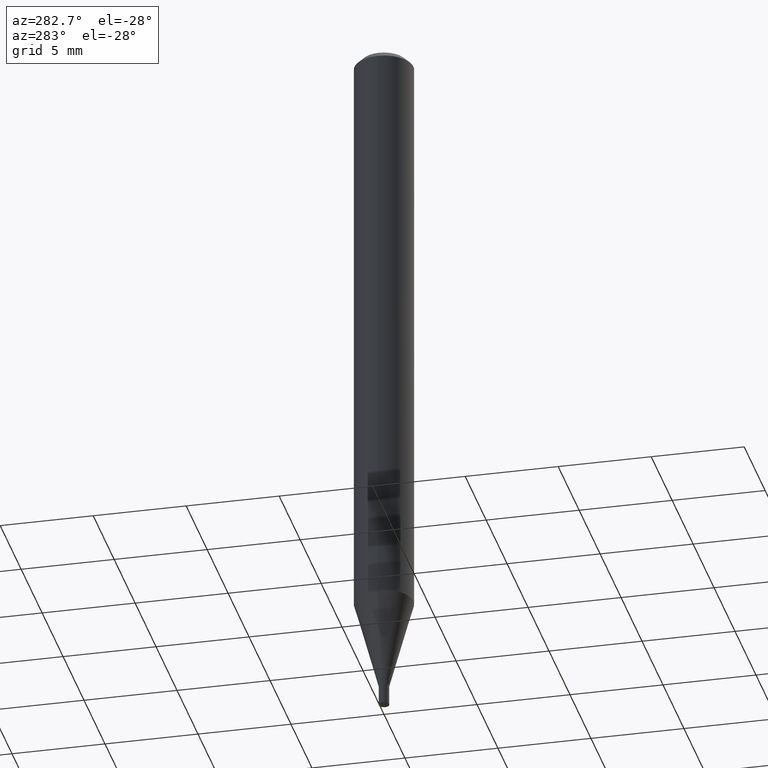
[diagram: clean part render]
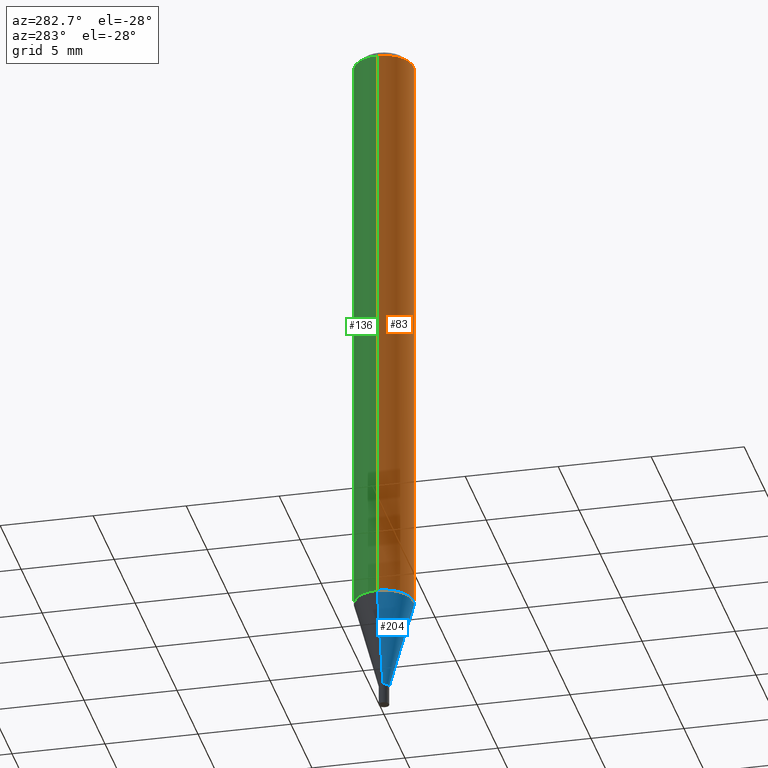
[diagram: same view with three faces highlighted in distinct colors, each labeled with its STEP entity id]
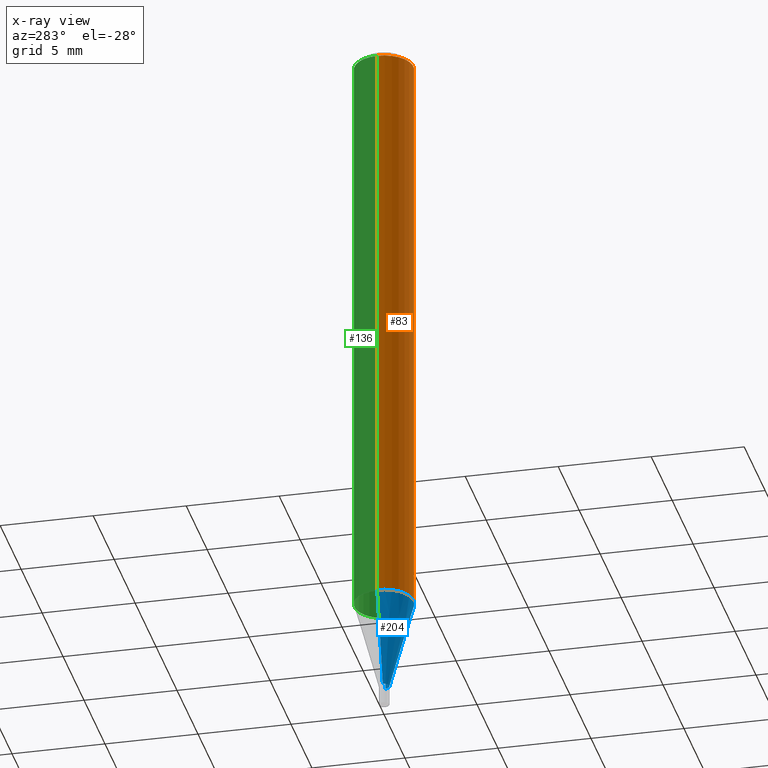
[diagram: x-ray of the same camera — body ghosted, the three highlighted faces saturated]
A machine part, auxiliary view with three faces highlighted in distinct colors.
The next image is the same camera in x-ray (body ghosted, the three faces saturated) — at least one of them is partly hidden behind the body in this view.
Their STEP definitions:

[orange] entity #83 — the highlighted cylindrical surface (edge-blend (fillet) strip) has radius 1.5875 mm, axis along (-0, 0, 1).
#18 = DIRECTION ( 'NONE',  ( -2.445468806185136597E-29, 3.491481338843145583E-15, 1.000000000000000000 ) ) ;
#19 = ORIENTED_EDGE ( 'NONE', *, *, #143, .T. ) ;
#23 = ORIENTED_EDGE ( 'NONE', *, *, #165, .F. ) ;
#25 = AXIS2_PLACEMENT_3D ( 'NONE', #343, #18, #410 ) ;
#45 = CIRCLE ( 'NONE', #25, 0.06250000000000000000 ) ;
#49 = DIRECTION ( 'NONE',  ( -2.445468806185136877E-29, 3.491481338843145188E-15, 1.000000000000000000 ) ) ;
#59 = VERTEX_POINT ( 'NONE', #147 ) ;
#67 = CYLINDRICAL_SURFACE ( 'NONE', #99, 0.06250000000000000000 ) ;
#72 = VERTEX_POINT ( 'NONE', #189 ) ;
#83 = ADVANCED_FACE ( 'NONE', ( #431 ), #67, .T. ) ;
#84 = DIRECTION ( 'NONE',  ( 1.000000000000000000, -6.982962677686266711E-15, 4.876176775795935793E-29 ) ) ;
#91 = DIRECTION ( 'NONE',  ( -2.445468806185136597E-29, 3.491481338843145583E-15, 1.000000000000000000 ) ) ;
#99 = AXIS2_PLACEMENT_3D ( 'NONE', #299, #91, #84 ) ;
#107 = EDGE_LOOP ( 'NONE', ( #23, #19, #240, #380 ) ) ;
#126 = CARTESIAN_POINT ( 'NONE',  ( -0.06250000000000000000, 4.440892098500626162E-16, -3.074334431409316114E-30 ) ) ;
#143 = EDGE_CURVE ( 'NONE', #155, #59, #266, .T. ) ;
#147 = CARTESIAN_POINT ( 'NONE',  ( 0.06250000000000000000, -4.852458611912431766E-15, -1.264799383410203149 ) ) ;
#155 = VERTEX_POINT ( 'NONE', #442 ) ;
#163 = DIRECTION ( 'NONE',  ( -2.445468806185136597E-29, 3.491481338843145583E-15, 1.000000000000000000 ) ) ;
#165 = EDGE_CURVE ( 'NONE', #155, #389, #441, .T. ) ;
#189 = CARTESIAN_POINT ( 'NONE',  ( 0.06250000000000000000, -4.888073874380388472E-16, -0.01499999999999999944 ) ) ;
#194 = CARTESIAN_POINT ( 'NONE',  ( 3.093027438211846075E-29, -4.416023444557040885E-15, -1.264799383410203149 ) ) ;
#221 = LINE ( 'NONE', #433, #345 ) ;
#240 = ORIENTED_EDGE ( 'NONE', *, *, #465, .T. ) ;
#266 = CIRCLE ( 'NONE', #324, 0.06250000000000000000 ) ;
#270 = EDGE_CURVE ( 'NONE', #389, #72, #45, .T. ) ;
#299 = CARTESIAN_POINT ( 'NONE',  ( 0.000000000000000000, 0.000000000000000000, 0.000000000000000000 ) ) ;
#324 = AXIS2_PLACEMENT_3D ( 'NONE', #194, #163, #371 ) ;
#343 = CARTESIAN_POINT ( 'NONE',  ( 3.668203209277705088E-31, -5.237222008264718399E-17, -0.01499999999999999944 ) ) ;
#345 = VECTOR ( 'NONE', #354, 39.37007874015748143 ) ;
#354 = DIRECTION ( 'NONE',  ( -2.445468806185136877E-29, 3.491481338843145188E-15, 1.000000000000000000 ) ) ;
#371 = DIRECTION ( 'NONE',  ( 1.000000000000000000, -6.982962677686262766E-15, 0.000000000000000000 ) ) ;
#380 = ORIENTED_EDGE ( 'NONE', *, *, #270, .F. ) ;
#389 = VERTEX_POINT ( 'NONE', #390 ) ;
#390 = CARTESIAN_POINT ( 'NONE',  ( -0.06250000000000000000, -1.790108622469781169E-15, -0.01499999999999999944 ) ) ;
#393 = VECTOR ( 'NONE', #49, 39.37007874015748143 ) ;
#410 = DIRECTION ( 'NONE',  ( 1.000000000000000000, -6.982962677686266711E-15, 0.000000000000000000 ) ) ;
#431 = FACE_OUTER_BOUND ( 'NONE', #107, .T. ) ;
#433 = CARTESIAN_POINT ( 'NONE',  ( 0.06250000000000000000, -4.364351673553916694E-16, 3.047610484872459871E-30 ) ) ;
#441 = LINE ( 'NONE', #126, #393 ) ;
#442 = CARTESIAN_POINT ( 'NONE',  ( -0.06250000000000000000, -3.971934234706977480E-15, -1.264799383410203149 ) ) ;
#465 = EDGE_CURVE ( 'NONE', #59, #72, #221, .T. ) ;

[blue] entity #204 — the highlighted conical surface has half-angle 15 deg.
#59 = VERTEX_POINT ( 'NONE', #147 ) ;
#61 = EDGE_LOOP ( 'NONE', ( #271, #459, #314, #381 ) ) ;
#90 = EDGE_CURVE ( 'NONE', #273, #59, #341, .T. ) ;
#92 = CONICAL_SURFACE ( 'NONE', #182, 0.01099999999999992130, 0.2617993877991500740 ) ;
#98 = VERTEX_POINT ( 'NONE', #440 ) ;
#143 = EDGE_CURVE ( 'NONE', #155, #59, #266, .T. ) ;
#147 = CARTESIAN_POINT ( 'NONE',  ( 0.06250000000000000000, -4.852458611912431766E-15, -1.264799383410203149 ) ) ;
#155 = VERTEX_POINT ( 'NONE', #442 ) ;
#163 = DIRECTION ( 'NONE',  ( -2.445468806185136597E-29, 3.491481338843145583E-15, 1.000000000000000000 ) ) ;
#182 = AXIS2_PLACEMENT_3D ( 'NONE', #224, #337, #263 ) ;
#194 = CARTESIAN_POINT ( 'NONE',  ( 3.093027438211846075E-29, -4.416023444557040885E-15, -1.264799383410203149 ) ) ;
#204 = ADVANCED_FACE ( 'NONE', ( #227 ), #92, .T. ) ;
#218 = CARTESIAN_POINT ( 'NONE',  ( -0.01099999999999992130, -5.008928609760852258E-15, -1.457000000000000073 ) ) ;
#223 = DIRECTION ( 'NONE',  ( -0.2588190451025213501, 5.211531920934551042E-15, 0.9659258262890682012 ) ) ;
#224 = CARTESIAN_POINT ( 'NONE',  ( 3.563048050611744147E-29, -5.087088310694462559E-15, -1.457000000000000073 ) ) ;
#227 = FACE_OUTER_BOUND ( 'NONE', #61, .T. ) ;
#230 = AXIS2_PLACEMENT_3D ( 'NONE', #269, #375, #309 ) ;
#263 = DIRECTION ( 'NONE',  ( 1.000000000000000000, -6.982962677686295110E-15, 0.000000000000000000 ) ) ;
#264 = EDGE_CURVE ( 'NONE', #98, #273, #315, .T. ) ;
#266 = CIRCLE ( 'NONE', #324, 0.06250000000000000000 ) ;
#269 = CARTESIAN_POINT ( 'NONE',  ( 3.563048050611744147E-29, -5.087088310694462559E-15, -1.457000000000000073 ) ) ;
#271 = ORIENTED_EDGE ( 'NONE', *, *, #301, .F. ) ;
#273 = VERTEX_POINT ( 'NONE', #388 ) ;
#301 = EDGE_CURVE ( 'NONE', #98, #155, #435, .T. ) ;
#303 = CARTESIAN_POINT ( 'NONE',  ( 0.01099999999999992130, -5.163900900149011871E-15, -1.457000000000000073 ) ) ;
#309 = DIRECTION ( 'NONE',  ( 1.000000000000000000, -6.982962677686295110E-15, 0.000000000000000000 ) ) ;
#314 = ORIENTED_EDGE ( 'NONE', *, *, #90, .T. ) ;
#315 = CIRCLE ( 'NONE', #230, 0.01099999999999992130 ) ;
#324 = AXIS2_PLACEMENT_3D ( 'NONE', #194, #163, #371 ) ;
#337 = DIRECTION ( 'NONE',  ( -2.445468806185136597E-29, 3.491481338843145583E-15, 1.000000000000000000 ) ) ;
#341 = LINE ( 'NONE', #303, #462 ) ;
#371 = DIRECTION ( 'NONE',  ( 1.000000000000000000, -6.982962677686262766E-15, 0.000000000000000000 ) ) ;
#375 = DIRECTION ( 'NONE',  ( -2.445468806185136597E-29, 3.491481338843145583E-15, 1.000000000000000000 ) ) ;
#381 = ORIENTED_EDGE ( 'NONE', *, *, #143, .F. ) ;
#388 = CARTESIAN_POINT ( 'NONE',  ( 0.01099999999999992130, -5.163900900149011871E-15, -1.457000000000000073 ) ) ;
#406 = VECTOR ( 'NONE', #223, 39.37007874015747433 ) ;
#435 = LINE ( 'NONE', #218, #406 ) ;
#440 = CARTESIAN_POINT ( 'NONE',  ( -0.01099999999999992130, -4.490431422233914869E-15, -1.457000000000000073 ) ) ;
#442 = CARTESIAN_POINT ( 'NONE',  ( -0.06250000000000000000, -3.971934234706977480E-15, -1.264799383410203149 ) ) ;
#445 = DIRECTION ( 'NONE',  ( 0.2588190451025213501, 1.565188264969621968E-15, 0.9659258262890682012 ) ) ;
#459 = ORIENTED_EDGE ( 'NONE', *, *, #264, .T. ) ;
#462 = VECTOR ( 'NONE', #445, 39.37007874015747433 ) ;

[green] entity #136 — the highlighted cylindrical surface (edge-blend (fillet) strip) has radius 1.5875 mm, axis along (-0, 0, 1).
#8 = EDGE_CURVE ( 'NONE', #72, #389, #338, .T. ) ;
#31 = DIRECTION ( 'NONE',  ( -2.445468806185136597E-29, 3.491481338843145583E-15, 1.000000000000000000 ) ) ;
#49 = DIRECTION ( 'NONE',  ( -2.445468806185136877E-29, 3.491481338843145188E-15, 1.000000000000000000 ) ) ;
#51 = FACE_OUTER_BOUND ( 'NONE', #255, .T. ) ;
#59 = VERTEX_POINT ( 'NONE', #147 ) ;
#69 = CARTESIAN_POINT ( 'NONE',  ( 3.668203209277705088E-31, -5.237222008264718399E-17, -0.01499999999999999944 ) ) ;
#72 = VERTEX_POINT ( 'NONE', #189 ) ;
#126 = CARTESIAN_POINT ( 'NONE',  ( -0.06250000000000000000, 4.440892098500626162E-16, -3.074334431409316114E-30 ) ) ;
#127 = AXIS2_PLACEMENT_3D ( 'NONE', #302, #157, #193 ) ;
#135 = AXIS2_PLACEMENT_3D ( 'NONE', #69, #31, #362 ) ;
#136 = ADVANCED_FACE ( 'NONE', ( #51 ), #197, .T. ) ;
#147 = CARTESIAN_POINT ( 'NONE',  ( 0.06250000000000000000, -4.852458611912431766E-15, -1.264799383410203149 ) ) ;
#155 = VERTEX_POINT ( 'NONE', #442 ) ;
#157 = DIRECTION ( 'NONE',  ( -2.445468806185136597E-29, 3.491481338843145583E-15, 1.000000000000000000 ) ) ;
#158 = EDGE_CURVE ( 'NONE', #59, #155, #166, .T. ) ;
#159 = CARTESIAN_POINT ( 'NONE',  ( 0.000000000000000000, 0.000000000000000000, 0.000000000000000000 ) ) ;
#165 = EDGE_CURVE ( 'NONE', #155, #389, #441, .T. ) ;
#166 = CIRCLE ( 'NONE', #127, 0.06250000000000000000 ) ;
#189 = CARTESIAN_POINT ( 'NONE',  ( 0.06250000000000000000, -4.888073874380388472E-16, -0.01499999999999999944 ) ) ;
#193 = DIRECTION ( 'NONE',  ( 1.000000000000000000, -6.982962677686262766E-15, 0.000000000000000000 ) ) ;
#197 = CYLINDRICAL_SURFACE ( 'NONE', #300, 0.06250000000000000000 ) ;
#201 = ORIENTED_EDGE ( 'NONE', *, *, #465, .F. ) ;
#214 = ORIENTED_EDGE ( 'NONE', *, *, #165, .T. ) ;
#221 = LINE ( 'NONE', #433, #345 ) ;
#255 = EDGE_LOOP ( 'NONE', ( #333, #214, #386, #201 ) ) ;
#265 = DIRECTION ( 'NONE',  ( 1.000000000000000000, -6.982962677686266711E-15, 4.876176775795935793E-29 ) ) ;
#300 = AXIS2_PLACEMENT_3D ( 'NONE', #159, #402, #265 ) ;
#302 = CARTESIAN_POINT ( 'NONE',  ( 3.093027438211846075E-29, -4.416023444557040885E-15, -1.264799383410203149 ) ) ;
#333 = ORIENTED_EDGE ( 'NONE', *, *, #158, .T. ) ;
#338 = CIRCLE ( 'NONE', #135, 0.06250000000000000000 ) ;
#345 = VECTOR ( 'NONE', #354, 39.37007874015748143 ) ;
#354 = DIRECTION ( 'NONE',  ( -2.445468806185136877E-29, 3.491481338843145188E-15, 1.000000000000000000 ) ) ;
#362 = DIRECTION ( 'NONE',  ( 1.000000000000000000, -6.982962677686266711E-15, 0.000000000000000000 ) ) ;
#386 = ORIENTED_EDGE ( 'NONE', *, *, #8, .F. ) ;
#389 = VERTEX_POINT ( 'NONE', #390 ) ;
#390 = CARTESIAN_POINT ( 'NONE',  ( -0.06250000000000000000, -1.790108622469781169E-15, -0.01499999999999999944 ) ) ;
#393 = VECTOR ( 'NONE', #49, 39.37007874015748143 ) ;
#402 = DIRECTION ( 'NONE',  ( -2.445468806185136597E-29, 3.491481338843145583E-15, 1.000000000000000000 ) ) ;
#433 = CARTESIAN_POINT ( 'NONE',  ( 0.06250000000000000000, -4.364351673553916694E-16, 3.047610484872459871E-30 ) ) ;
#441 = LINE ( 'NONE', #126, #393 ) ;
#442 = CARTESIAN_POINT ( 'NONE',  ( -0.06250000000000000000, -3.971934234706977480E-15, -1.264799383410203149 ) ) ;
#465 = EDGE_CURVE ( 'NONE', #59, #72, #221, .T. ) ;